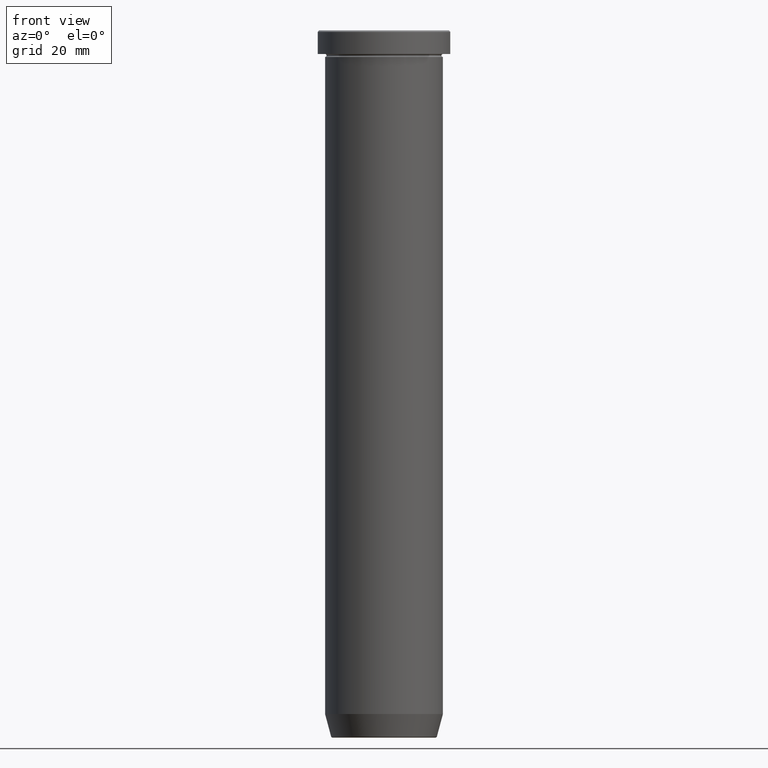
[diagram: clean part render]
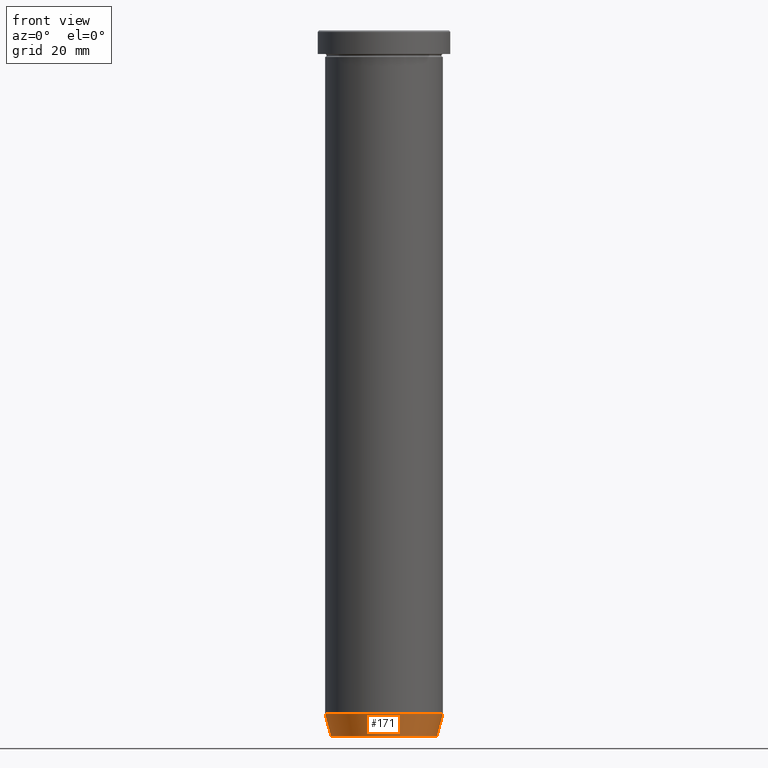
[diagram: same view with one face highlighted and labeled with its STEP entity id]
A machine part, front view. The second image highlights one B-rep face of the part: STEP entity #171.
In plain terms, the highlighted conical surface has half-angle 15 deg.
Its self-contained STEP definition (entity closure, byte-faithful):
#9 = DIRECTION ( 'NONE',  ( -0.000000000000000000, -0.000000000000000000, 1.000000000000000000 ) ) ;
#35 = AXIS2_PLACEMENT_3D ( 'NONE', #391, #434, #428 ) ;
#37 = DIRECTION ( 'NONE',  ( -0.2588190451025212391, 3.169619151431771721E-17, 0.9659258262890680902 ) ) ;
#69 = ORIENTED_EDGE ( 'NONE', *, *, #382, .T. ) ;
#70 = DIRECTION ( 'NONE',  ( 0.2588190451025212391, 0.000000000000000000, 0.9659258262890680902 ) ) ;
#88 = CARTESIAN_POINT ( 'NONE',  ( -20.00000000000000355, 2.449293598294706907E-15, -231.9999999999999716 ) ) ;
#102 = DIRECTION ( 'NONE',  ( -1.000000000000000000, 0.000000000000000000, 0.000000000000000000 ) ) ;
#121 = LINE ( 'NONE', #268, #448 ) ;
#142 = ORIENTED_EDGE ( 'NONE', *, *, #526, .T. ) ;
#145 = EDGE_CURVE ( 'NONE', #152, #331, #121, .T. ) ;
#147 = FACE_OUTER_BOUND ( 'NONE', #460, .T. ) ;
#149 = AXIS2_PLACEMENT_3D ( 'NONE', #322, #9, #551 ) ;
#152 = VERTEX_POINT ( 'NONE', #467 ) ;
#169 = CONICAL_SURFACE ( 'NONE', #149, 17.85640646055101399, 0.2617993877991499629 ) ;
#171 = ADVANCED_FACE ( 'NONE', ( #147 ), #169, .T. ) ;
#198 = VERTEX_POINT ( 'NONE', #509 ) ;
#205 = VERTEX_POINT ( 'NONE', #278 ) ;
#213 = AXIS2_PLACEMENT_3D ( 'NONE', #330, #244, #102 ) ;
#244 = DIRECTION ( 'NONE',  ( -0.000000000000000000, -0.000000000000000000, 1.000000000000000000 ) ) ;
#268 = CARTESIAN_POINT ( 'NONE',  ( -17.85640646055101399, 2.186779101618792051E-15, -240.0000000000000000 ) ) ;
#278 = CARTESIAN_POINT ( 'NONE',  ( 20.00000000000000355, 0.000000000000000000, -231.9999999999999716 ) ) ;
#298 = CIRCLE ( 'NONE', #213, 17.95570587970606979 ) ;
#322 = CARTESIAN_POINT ( 'NONE',  ( 0.000000000000000000, 0.000000000000000000, -240.0000000000000000 ) ) ;
#330 = CARTESIAN_POINT ( 'NONE',  ( 0.000000000000000000, 0.000000000000000000, -239.6294095225512422 ) ) ;
#331 = VERTEX_POINT ( 'NONE', #88 ) ;
#382 = EDGE_CURVE ( 'NONE', #198, #205, #581, .T. ) ;
#391 = CARTESIAN_POINT ( 'NONE',  ( 0.000000000000000000, 0.000000000000000000, -231.9999999999999716 ) ) ;
#428 = DIRECTION ( 'NONE',  ( 1.000000000000000000, 0.000000000000000000, 0.000000000000000000 ) ) ;
#434 = DIRECTION ( 'NONE',  ( -0.000000000000000000, -0.000000000000000000, 1.000000000000000000 ) ) ;
#438 = ORIENTED_EDGE ( 'NONE', *, *, #145, .F. ) ;
#448 = VECTOR ( 'NONE', #37, 1000.000000000000114 ) ;
#460 = EDGE_LOOP ( 'NONE', ( #438, #142, #69, #565 ) ) ;
#467 = CARTESIAN_POINT ( 'NONE',  ( -17.95570587970606979, 2.324116685748020582E-15, -239.6294095225512422 ) ) ;
#483 = CIRCLE ( 'NONE', #35, 20.00000000000000355 ) ;
#509 = CARTESIAN_POINT ( 'NONE',  ( 17.95570587970606979, 0.000000000000000000, -239.6294095225512422 ) ) ;
#526 = EDGE_CURVE ( 'NONE', #152, #198, #298, .T. ) ;
#529 = VECTOR ( 'NONE', #70, 1000.000000000000114 ) ;
#531 = CARTESIAN_POINT ( 'NONE',  ( 17.85640646055101399, 0.000000000000000000, -240.0000000000000000 ) ) ;
#551 = DIRECTION ( 'NONE',  ( 1.000000000000000000, 0.000000000000000000, 0.000000000000000000 ) ) ;
#558 = EDGE_CURVE ( 'NONE', #331, #205, #483, .T. ) ;
#565 = ORIENTED_EDGE ( 'NONE', *, *, #558, .F. ) ;
#581 = LINE ( 'NONE', #531, #529 ) ;